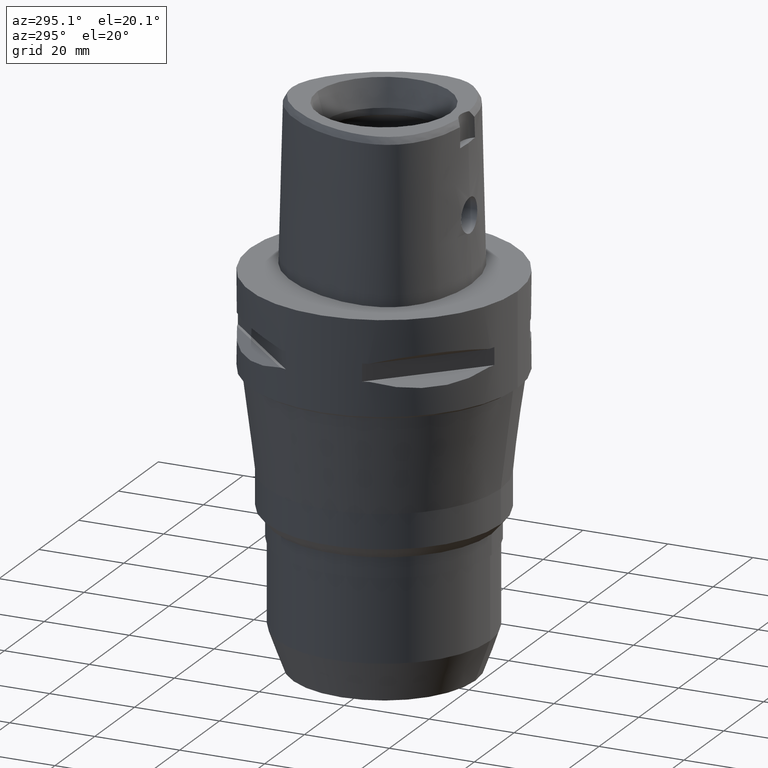
[diagram: clean part render]
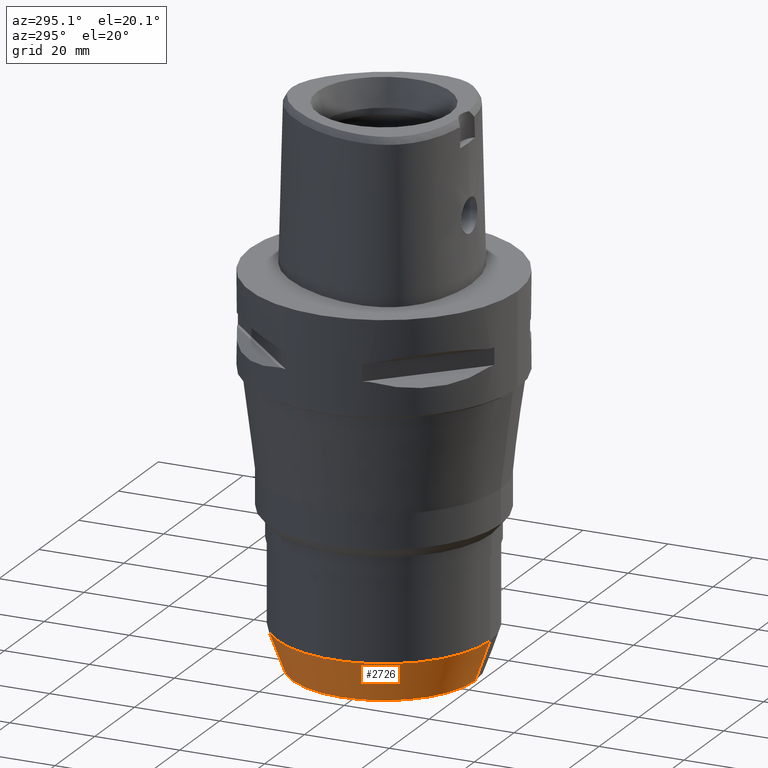
[diagram: same view with one face highlighted and labeled with its STEP entity id]
A machine part, auxiliary view. The second image highlights one B-rep face of the part: STEP entity #2726.
In plain terms, the highlighted conical surface has half-angle 20 deg.
Its self-contained STEP definition (entity closure, byte-faithful):
#720=DIRECTION('',(0.E0,-3.420201433258E-1,-9.396926207858E-1));
#721=VECTOR('',#720,1.021610661577E1);
#722=CARTESIAN_POINT('',(0.E0,2.5E1,-8.04E1));
#723=LINE('',#722,#721);
#735=CARTESIAN_POINT('',(0.E0,0.E0,-8.04E1));
#736=DIRECTION('',(0.E0,0.E0,1.E0));
#737=DIRECTION('',(0.E0,1.E0,0.E0));
#738=AXIS2_PLACEMENT_3D('',#735,#736,#737);
#743=DIRECTION('',(0.E0,3.420201433258E-1,-9.396926207858E-1));
#744=VECTOR('',#743,1.021610661577E1);
#745=CARTESIAN_POINT('',(0.E0,-2.5E1,-8.04E1));
#746=LINE('',#745,#744);
#758=CARTESIAN_POINT('',(0.E0,0.E0,-9.E1));
#759=DIRECTION('',(0.E0,0.E0,1.E0));
#760=DIRECTION('',(0.E0,1.E0,0.E0));
#761=AXIS2_PLACEMENT_3D('',#758,#759,#760);
#1648=CARTESIAN_POINT('',(0.E0,2.5E1,-8.04E1));
#1649=VERTEX_POINT('',#1648);
#1650=CARTESIAN_POINT('',(0.E0,-2.5E1,-8.04E1));
#1651=VERTEX_POINT('',#1650);
#1652=CARTESIAN_POINT('',(0.E0,2.150588575104E1,-9.E1));
#1653=VERTEX_POINT('',#1652);
#1654=CARTESIAN_POINT('',(0.E0,-2.150588575104E1,-9.E1));
#1655=VERTEX_POINT('',#1654);
#2714=CARTESIAN_POINT('',(0.E0,0.E0,-8.52E1));
#2715=DIRECTION('',(0.E0,0.E0,1.E0));
#2716=DIRECTION('',(0.E0,1.E0,0.E0));
#2717=AXIS2_PLACEMENT_3D('',#2714,#2715,#2716);
#2718=CONICAL_SURFACE('',#2717,2.325294287552E1,2.E1);
#2719=ORIENTED_EDGE('',*,*,#2704,.F.);
#2720=ORIENTED_EDGE('',*,*,#2681,.T.);
#2721=ORIENTED_EDGE('',*,*,#2708,.T.);
#2723=ORIENTED_EDGE('',*,*,#2722,.F.);
#2724=EDGE_LOOP('',(#2719,#2720,#2721,#2723));
#2725=FACE_OUTER_BOUND('',#2724,.F.);
#739=CIRCLE('',#738,2.5E1);
#762=CIRCLE('',#761,2.150588575104E1);
#2681=EDGE_CURVE('',#1649,#1651,#739,.T.);
#2704=EDGE_CURVE('',#1649,#1653,#723,.T.);
#2708=EDGE_CURVE('',#1651,#1655,#746,.T.);
#2722=EDGE_CURVE('',#1653,#1655,#762,.T.);
#2726=ADVANCED_FACE('',(#2725),#2718,.T.);